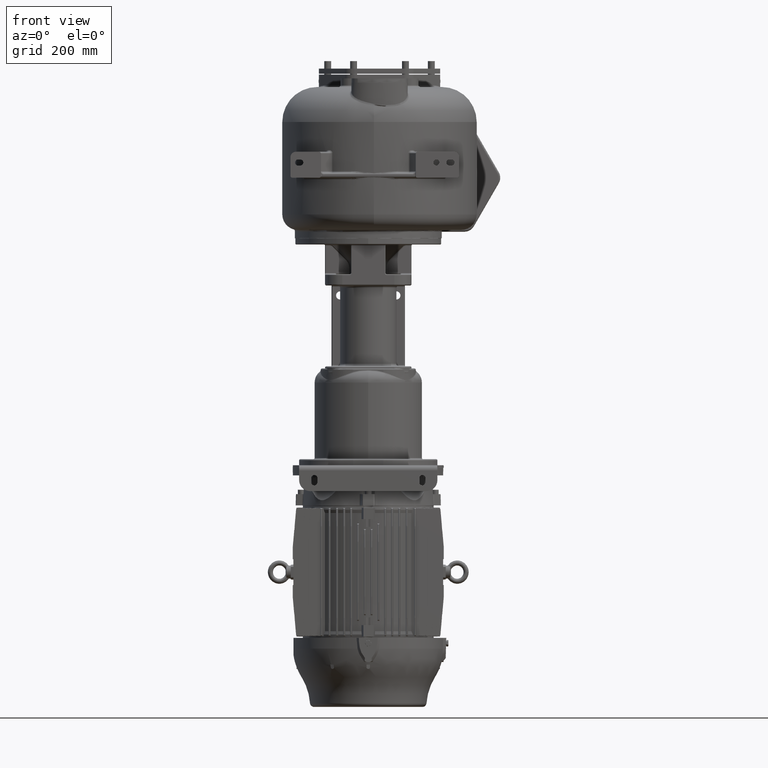
[diagram: clean part render]
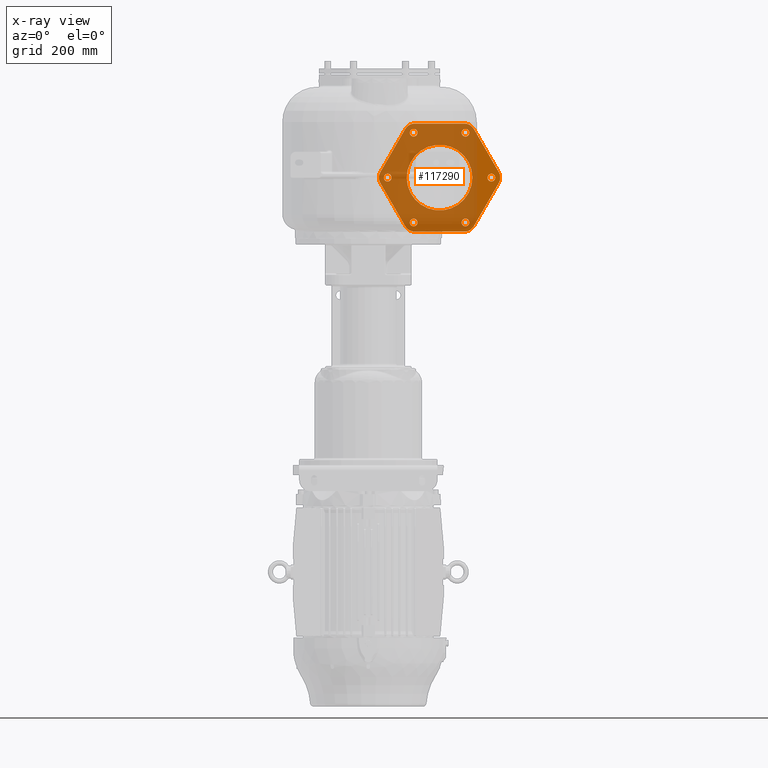
[diagram: x-ray — body ghosted, one internal face saturated and labeled with its STEP entity id]
A machine part, front view, then the same camera in x-ray: the body is ghosted and one INTERNAL B-rep face — a face not visible from any outside direction — is saturated and labeled: STEP entity #117290.
In plain terms, the highlighted planar face has unit normal (0, 1, 0).
Its self-contained STEP definition (entity closure, byte-faithful):
#116685=CARTESIAN_POINT('',(2.227350269190E2,5.51E2,-1.35E2));
#116686=DIRECTION('',(0.E0,-1.E0,0.E0));
#116687=DIRECTION('',(0.E0,0.E0,-1.E0));
#116688=AXIS2_PLACEMENT_3D('',#116685,#116686,#116687);
#116690=DIRECTION('',(1.E0,0.E0,0.E0));
#116691=VECTOR('',#116690,1.154700538379E2);
#116692=CARTESIAN_POINT('',(1.072649730810E2,5.51E2,-1.6E2));
#116693=LINE('',#116692,#116691);
#116694=CARTESIAN_POINT('',(1.072649730810E2,5.51E2,-1.35E2));
#116695=DIRECTION('',(0.E0,-1.E0,0.E0));
#116696=DIRECTION('',(-8.660254037844E-1,0.E0,-5.E-1));
#116697=AXIS2_PLACEMENT_3D('',#116694,#116695,#116696);
#116699=DIRECTION('',(5.E-1,0.E0,-8.660254037844E-1));
#116700=VECTOR('',#116699,1.154700538379E2);
#116701=CARTESIAN_POINT('',(2.787931106746E1,5.51E2,-4.75E1));
#116702=LINE('',#116701,#116700);
#116703=CARTESIAN_POINT('',(4.952994616208E1,5.51E2,-3.5E1));
#116704=DIRECTION('',(0.E0,-1.E0,0.E0));
#116705=DIRECTION('',(-8.660254037844E-1,0.E0,5.E-1));
#116706=AXIS2_PLACEMENT_3D('',#116703,#116704,#116705);
#116708=DIRECTION('',(-5.E-1,0.E0,-8.660254037844E-1));
#116709=VECTOR('',#116708,1.154700538379E2);
#116710=CARTESIAN_POINT('',(8.561433798643E1,5.51E2,7.75E1));
#116711=LINE('',#116710,#116709);
#116712=CARTESIAN_POINT('',(1.072649730810E2,5.51E2,6.5E1));
#116713=DIRECTION('',(0.E0,-1.E0,0.E0));
#116714=DIRECTION('',(0.E0,0.E0,1.E0));
#116715=AXIS2_PLACEMENT_3D('',#116712,#116713,#116714);
#116717=DIRECTION('',(-1.E0,0.E0,0.E0));
#116718=VECTOR('',#116717,1.154700538379E2);
#116719=CARTESIAN_POINT('',(2.227350269190E2,5.51E2,9.E1));
#116720=LINE('',#116719,#116718);
#116721=CARTESIAN_POINT('',(2.227350269190E2,5.51E2,6.5E1));
#116722=DIRECTION('',(0.E0,-1.E0,0.E0));
#116723=DIRECTION('',(8.660254037844E-1,0.E0,5.E-1));
#116724=AXIS2_PLACEMENT_3D('',#116721,#116722,#116723);
#116726=DIRECTION('',(-5.E-1,0.E0,8.660254037844E-1));
#116727=VECTOR('',#116726,1.154700538379E2);
#116728=CARTESIAN_POINT('',(3.021206889325E2,5.51E2,-2.25E1));
#116729=LINE('',#116728,#116727);
#116730=CARTESIAN_POINT('',(2.804700538379E2,5.51E2,-3.5E1));
#116731=DIRECTION('',(0.E0,-1.E0,0.E0));
#116732=DIRECTION('',(8.660254037844E-1,0.E0,-5.E-1));
#116733=AXIS2_PLACEMENT_3D('',#116730,#116731,#116732);
#116735=DIRECTION('',(5.E-1,0.E0,8.660254037844E-1));
#116736=VECTOR('',#116735,1.154700538379E2);
#116737=CARTESIAN_POINT('',(2.443856620136E2,5.51E2,-1.475E2));
#116738=LINE('',#116737,#116736);
#116739=CARTESIAN_POINT('',(1.65E2,5.51E2,-3.5E1));
#116740=DIRECTION('',(0.E0,-1.E0,0.E0));
#116741=DIRECTION('',(-1.E0,0.E0,0.E0));
#116742=AXIS2_PLACEMENT_3D('',#116739,#116740,#116741);
#116744=CARTESIAN_POINT('',(1.65E2,5.51E2,-3.5E1));
#116745=DIRECTION('',(0.E0,-1.E0,0.E0));
#116746=DIRECTION('',(1.E0,0.E0,0.E0));
#116747=AXIS2_PLACEMENT_3D('',#116744,#116745,#116746);
#116749=CARTESIAN_POINT('',(1.05E2,5.51E2,6.892304845413E1));
#116750=DIRECTION('',(0.E0,1.E0,0.E0));
#116751=DIRECTION('',(1.E0,0.E0,0.E0));
#116752=AXIS2_PLACEMENT_3D('',#116749,#116750,#116751);
#116754=CARTESIAN_POINT('',(1.05E2,5.51E2,6.892304845413E1));
#116755=DIRECTION('',(0.E0,1.E0,0.E0));
#116756=DIRECTION('',(-1.E0,0.E0,0.E0));
#116757=AXIS2_PLACEMENT_3D('',#116754,#116755,#116756);
#116759=CARTESIAN_POINT('',(4.5E1,5.51E2,-3.5E1));
#116760=DIRECTION('',(0.E0,1.E0,0.E0));
#116761=DIRECTION('',(5.E-1,0.E0,8.660254037844E-1));
#116762=AXIS2_PLACEMENT_3D('',#116759,#116760,#116761);
#116764=CARTESIAN_POINT('',(4.5E1,5.51E2,-3.5E1));
#116765=DIRECTION('',(0.E0,1.E0,0.E0));
#116766=DIRECTION('',(-5.E-1,0.E0,-8.660254037844E-1));
#116767=AXIS2_PLACEMENT_3D('',#116764,#116765,#116766);
#116769=CARTESIAN_POINT('',(1.05E2,5.51E2,-1.389230484541E2));
#116770=DIRECTION('',(0.E0,1.E0,0.E0));
#116771=DIRECTION('',(-5.E-1,0.E0,8.660254037844E-1));
#116772=AXIS2_PLACEMENT_3D('',#116769,#116770,#116771);
#116774=CARTESIAN_POINT('',(1.05E2,5.51E2,-1.389230484541E2));
#116775=DIRECTION('',(0.E0,1.E0,0.E0));
#116776=DIRECTION('',(5.E-1,0.E0,-8.660254037844E-1));
#116777=AXIS2_PLACEMENT_3D('',#116774,#116775,#116776);
#116779=CARTESIAN_POINT('',(2.25E2,5.51E2,-1.389230484541E2));
#116780=DIRECTION('',(0.E0,1.E0,0.E0));
#116781=DIRECTION('',(-1.E0,0.E0,0.E0));
#116782=AXIS2_PLACEMENT_3D('',#116779,#116780,#116781);
#116784=CARTESIAN_POINT('',(2.25E2,5.51E2,-1.389230484541E2));
#116785=DIRECTION('',(0.E0,1.E0,0.E0));
#116786=DIRECTION('',(1.E0,0.E0,0.E0));
#116787=AXIS2_PLACEMENT_3D('',#116784,#116785,#116786);
#116789=CARTESIAN_POINT('',(2.85E2,5.51E2,-3.5E1));
#116790=DIRECTION('',(0.E0,1.E0,0.E0));
#116791=DIRECTION('',(-5.E-1,0.E0,-8.660254037844E-1));
#116792=AXIS2_PLACEMENT_3D('',#116789,#116790,#116791);
#116794=CARTESIAN_POINT('',(2.85E2,5.51E2,-3.5E1));
#116795=DIRECTION('',(0.E0,1.E0,0.E0));
#116796=DIRECTION('',(5.E-1,0.E0,8.660254037844E-1));
#116797=AXIS2_PLACEMENT_3D('',#116794,#116795,#116796);
#116799=CARTESIAN_POINT('',(2.25E2,5.51E2,6.892304845413E1));
#116800=DIRECTION('',(0.E0,1.E0,0.E0));
#116801=DIRECTION('',(5.E-1,0.E0,-8.660254037844E-1));
#116802=AXIS2_PLACEMENT_3D('',#116799,#116800,#116801);
#116804=CARTESIAN_POINT('',(2.25E2,5.51E2,6.892304845413E1));
#116805=DIRECTION('',(0.E0,1.E0,0.E0));
#116806=DIRECTION('',(-5.E-1,0.E0,8.660254037844E-1));
#116807=AXIS2_PLACEMENT_3D('',#116804,#116805,#116806);
#116857=CARTESIAN_POINT('',(1.14E2,5.51E2,6.892304845413E1));
#116859=VERTEX_POINT('',#116857);
#116861=CARTESIAN_POINT('',(9.6E1,5.51E2,6.892304845413E1));
#116863=VERTEX_POINT('',#116861);
#116865=CARTESIAN_POINT('',(4.95E1,5.51E2,-2.720577136594E1));
#116867=VERTEX_POINT('',#116865);
#116869=CARTESIAN_POINT('',(4.05E1,5.51E2,-4.279422863406E1));
#116871=VERTEX_POINT('',#116869);
#116873=CARTESIAN_POINT('',(1.005E2,5.51E2,-1.311288198201E2));
#116875=VERTEX_POINT('',#116873);
#116877=CARTESIAN_POINT('',(1.095E2,5.51E2,-1.467172770882E2));
#116879=VERTEX_POINT('',#116877);
#116881=CARTESIAN_POINT('',(2.16E2,5.51E2,-1.389230484541E2));
#116883=VERTEX_POINT('',#116881);
#116885=CARTESIAN_POINT('',(2.34E2,5.51E2,-1.389230484541E2));
#116887=VERTEX_POINT('',#116885);
#116889=CARTESIAN_POINT('',(2.805E2,5.51E2,-4.279422863406E1));
#116891=VERTEX_POINT('',#116889);
#116893=CARTESIAN_POINT('',(2.895E2,5.51E2,-2.720577136594E1));
#116895=VERTEX_POINT('',#116893);
#116897=CARTESIAN_POINT('',(2.295E2,5.51E2,6.112881982007E1));
#116899=VERTEX_POINT('',#116897);
#116901=CARTESIAN_POINT('',(2.205E2,5.51E2,7.671727708819E1));
#116903=VERTEX_POINT('',#116901);
#116905=CARTESIAN_POINT('',(8.9E1,5.51E2,-3.5E1));
#116906=CARTESIAN_POINT('',(2.41E2,5.51E2,-3.5E1));
#116907=VERTEX_POINT('',#116905);
#116908=VERTEX_POINT('',#116906);
#116917=CARTESIAN_POINT('',(2.227350269190E2,5.51E2,-1.6E2));
#116918=VERTEX_POINT('',#116917);
#116919=CARTESIAN_POINT('',(2.443856620136E2,5.51E2,-1.475E2));
#116920=VERTEX_POINT('',#116919);
#116925=CARTESIAN_POINT('',(3.021206889325E2,5.51E2,-4.75E1));
#116926=VERTEX_POINT('',#116925);
#116927=CARTESIAN_POINT('',(3.021206889325E2,5.51E2,-2.25E1));
#116928=VERTEX_POINT('',#116927);
#116933=CARTESIAN_POINT('',(2.443856620136E2,5.51E2,7.75E1));
#116934=VERTEX_POINT('',#116933);
#116935=CARTESIAN_POINT('',(2.227350269190E2,5.51E2,9.E1));
#116936=VERTEX_POINT('',#116935);
#116941=CARTESIAN_POINT('',(1.072649730810E2,5.51E2,9.E1));
#116942=VERTEX_POINT('',#116941);
#116943=CARTESIAN_POINT('',(8.561433798643E1,5.51E2,7.75E1));
#116944=VERTEX_POINT('',#116943);
#116949=CARTESIAN_POINT('',(2.787931106746E1,5.51E2,-2.25E1));
#116950=VERTEX_POINT('',#116949);
#116951=CARTESIAN_POINT('',(2.787931106746E1,5.51E2,-4.75E1));
#116952=VERTEX_POINT('',#116951);
#116957=CARTESIAN_POINT('',(8.561433798643E1,5.51E2,-1.475E2));
#116958=VERTEX_POINT('',#116957);
#116959=CARTESIAN_POINT('',(1.072649730810E2,5.51E2,-1.6E2));
#116960=VERTEX_POINT('',#116959);
#117231=CARTESIAN_POINT('',(1.65E2,5.51E2,-3.5E1));
#117232=DIRECTION('',(0.E0,1.E0,0.E0));
#117233=DIRECTION('',(-1.E0,0.E0,0.E0));
#117234=AXIS2_PLACEMENT_3D('',#117231,#117232,#117233);
#117235=PLANE('',#117234);
#117236=ORIENTED_EDGE('',*,*,#117071,.F.);
#117237=ORIENTED_EDGE('',*,*,#117087,.F.);
#117238=ORIENTED_EDGE('',*,*,#117100,.F.);
#117239=ORIENTED_EDGE('',*,*,#117113,.F.);
#117240=ORIENTED_EDGE('',*,*,#117128,.F.);
#117241=ORIENTED_EDGE('',*,*,#117141,.F.);
#117242=ORIENTED_EDGE('',*,*,#117156,.F.);
#117243=ORIENTED_EDGE('',*,*,#117169,.F.);
#117244=ORIENTED_EDGE('',*,*,#117184,.F.);
#117245=ORIENTED_EDGE('',*,*,#117197,.F.);
#117246=ORIENTED_EDGE('',*,*,#117212,.F.);
#117247=ORIENTED_EDGE('',*,*,#117224,.F.);
#117248=EDGE_LOOP('',(#117236,#117237,#117238,#117239,#117240,#117241,#117242,
#117243,#117244,#117245,#117246,#117247));
#117249=FACE_OUTER_BOUND('',#117248,.F.);
#117251=ORIENTED_EDGE('',*,*,#117250,.T.);
#117253=ORIENTED_EDGE('',*,*,#117252,.T.);
#117254=EDGE_LOOP('',(#117251,#117253));
#117255=FACE_BOUND('',#117254,.F.);
#117257=ORIENTED_EDGE('',*,*,#117256,.F.);
#117259=ORIENTED_EDGE('',*,*,#117258,.F.);
#117260=EDGE_LOOP('',(#117257,#117259));
#117261=FACE_BOUND('',#117260,.F.);
#117263=ORIENTED_EDGE('',*,*,#117262,.F.);
#117265=ORIENTED_EDGE('',*,*,#117264,.F.);
#117266=EDGE_LOOP('',(#117263,#117265));
#117267=FACE_BOUND('',#117266,.F.);
#117269=ORIENTED_EDGE('',*,*,#117268,.F.);
#117271=ORIENTED_EDGE('',*,*,#117270,.F.);
#117272=EDGE_LOOP('',(#117269,#117271));
#117273=FACE_BOUND('',#117272,.F.);
#117275=ORIENTED_EDGE('',*,*,#117274,.F.);
#117277=ORIENTED_EDGE('',*,*,#117276,.F.);
#117278=EDGE_LOOP('',(#117275,#117277));
#117279=FACE_BOUND('',#117278,.F.);
#117280=ORIENTED_EDGE('',*,*,#116968,.F.);
#117281=ORIENTED_EDGE('',*,*,#116986,.F.);
#117282=EDGE_LOOP('',(#117280,#117281));
#117283=FACE_BOUND('',#117282,.F.);
#117285=ORIENTED_EDGE('',*,*,#117284,.F.);
#117287=ORIENTED_EDGE('',*,*,#117286,.F.);
#117288=EDGE_LOOP('',(#117285,#117287));
#117289=FACE_BOUND('',#117288,.F.);
#117290=ADVANCED_FACE('',(#117249,#117255,#117261,#117267,#117273,#117279,
#117283,#117289),#117235,.F.);
#116689=CIRCLE('',#116688,2.5E1);
#116698=CIRCLE('',#116697,2.5E1);
#116707=CIRCLE('',#116706,2.5E1);
#116716=CIRCLE('',#116715,2.5E1);
#116725=CIRCLE('',#116724,2.5E1);
#116734=CIRCLE('',#116733,2.5E1);
#116743=CIRCLE('',#116742,7.6E1);
#116748=CIRCLE('',#116747,7.6E1);
#116753=CIRCLE('',#116752,9.E0);
#116758=CIRCLE('',#116757,9.E0);
#116763=CIRCLE('',#116762,9.E0);
#116768=CIRCLE('',#116767,9.E0);
#116773=CIRCLE('',#116772,9.E0);
#116778=CIRCLE('',#116777,9.E0);
#116783=CIRCLE('',#116782,9.E0);
#116788=CIRCLE('',#116787,9.E0);
#116793=CIRCLE('',#116792,9.E0);
#116798=CIRCLE('',#116797,9.E0);
#116803=CIRCLE('',#116802,9.E0);
#116808=CIRCLE('',#116807,9.E0);
#116968=EDGE_CURVE('',#116891,#116895,#116793,.T.);
#116986=EDGE_CURVE('',#116895,#116891,#116798,.T.);
#117071=EDGE_CURVE('',#116918,#116920,#116689,.T.);
#117087=EDGE_CURVE('',#116960,#116918,#116693,.T.);
#117100=EDGE_CURVE('',#116958,#116960,#116698,.T.);
#117113=EDGE_CURVE('',#116952,#116958,#116702,.T.);
#117128=EDGE_CURVE('',#116950,#116952,#116707,.T.);
#117141=EDGE_CURVE('',#116944,#116950,#116711,.T.);
#117156=EDGE_CURVE('',#116942,#116944,#116716,.T.);
#117169=EDGE_CURVE('',#116936,#116942,#116720,.T.);
#117184=EDGE_CURVE('',#116934,#116936,#116725,.T.);
#117197=EDGE_CURVE('',#116928,#116934,#116729,.T.);
#117212=EDGE_CURVE('',#116926,#116928,#116734,.T.);
#117224=EDGE_CURVE('',#116920,#116926,#116738,.T.);
#117250=EDGE_CURVE('',#116907,#116908,#116743,.T.);
#117252=EDGE_CURVE('',#116908,#116907,#116748,.T.);
#117256=EDGE_CURVE('',#116859,#116863,#116753,.T.);
#117258=EDGE_CURVE('',#116863,#116859,#116758,.T.);
#117262=EDGE_CURVE('',#116867,#116871,#116763,.T.);
#117264=EDGE_CURVE('',#116871,#116867,#116768,.T.);
#117268=EDGE_CURVE('',#116875,#116879,#116773,.T.);
#117270=EDGE_CURVE('',#116879,#116875,#116778,.T.);
#117274=EDGE_CURVE('',#116883,#116887,#116783,.T.);
#117276=EDGE_CURVE('',#116887,#116883,#116788,.T.);
#117284=EDGE_CURVE('',#116899,#116903,#116803,.T.);
#117286=EDGE_CURVE('',#116903,#116899,#116808,.T.);